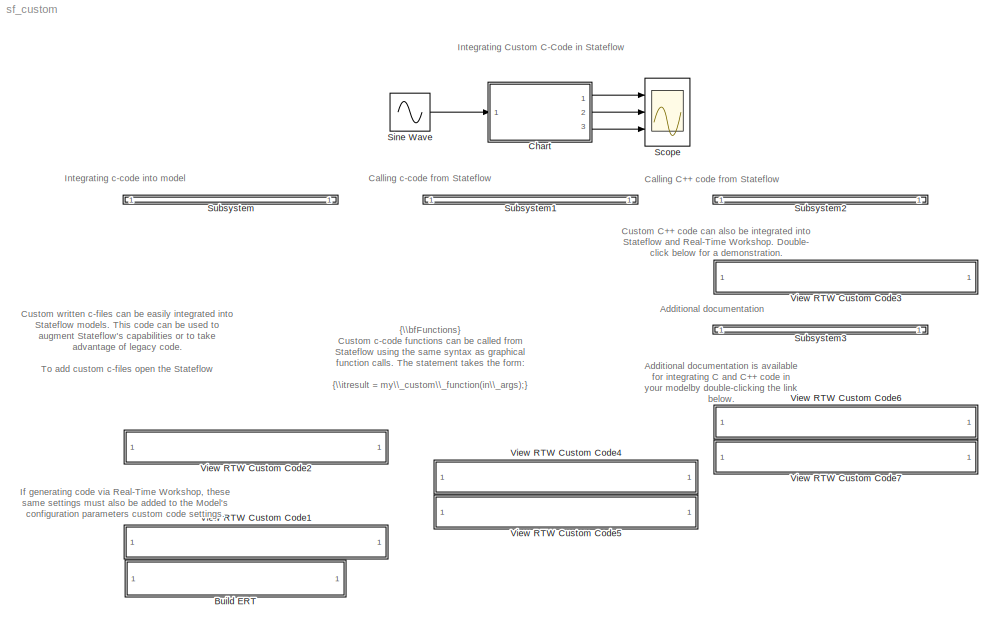
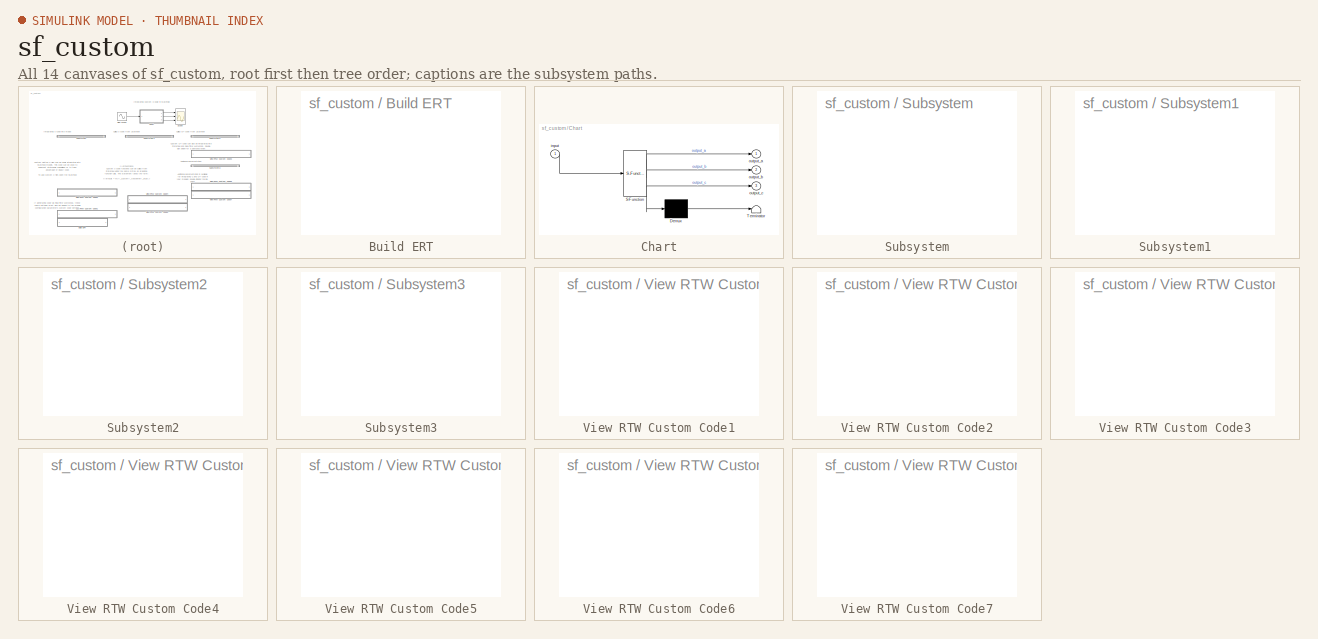
[diagram: thumbnail index - all 14 canvases of the model, root first then tree order]
MODEL sf_custom
KIND model
BLOCK [SubSystem] Build ERT
  MaskDescription = Enter the attributes of the configuration set that you want preserved.  Otherwise, the default configuration script will override your current settings.
  MaskDisplay = patch(arrowXvec, arrowYvec);\ntext(textX, textY, 'Build model using Real-Time\\nWorkshop');
  MaskEnableString = on
  MaskIconFrame = off
  MaskIconOpaque = on
  MaskIconRotate = none
  MaskIconUnits = pixels
  MaskInitialization = pos    = get_param(gcb, 'Position');\nwidth  = pos(3) - pos(1);\nheight = pos(4) - pos(2);\n\n\n% Compute arrow coordinates\narrowW = width  / 20;\narrowH = height / 2.5;\narrowX = width  / 50;\narrowY = height / 3;\narrowXvec = [arrowX, arrowX, arrowX + arrowW];\narrowYvec = [arrowY, arrowY + arrowH, arrowY + arrowH / 2];\n\n% Compute text position\ntextXbuff = width / 30;\ntextX  = arrowX + arro...<+39ch>  <repeated x8 — deduplicated; at blocks: Build ERT, View RTW Custom Code1, View RTW Custom Code2, View RTW Custom Code3, View RTW Custom Code4, View RTW Custom Code5, View RTW Custom Code6, View RTW Custom Code7>
  MaskPromptString = List of attributes to preserve (cell of strings):
  MaskStyleString = edit
  MaskToolTipString = on
  MaskTunableValueString = off
  MaskValueString = {}
  MaskVariables = attrib_overrides=&1;
  MaskVisibilityString = on
  MinAlgLoopOccurrences = off
  OpenFcn = model=bdroot;            \nrtwbuilddemomodel(model);
  Ports = []
  PropExecContextAcrossSSBoundary = on
  RTWSystemCode = Auto
  TreatAsAtomicUnit = off
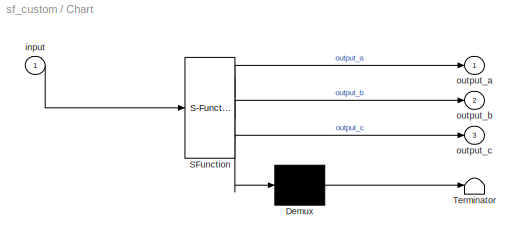
BLOCK [SubSystem] Chart
  MaskDisplay = plot(sf('Private','sfblk','xIcon'),sf('Private','sfblk','yIcon'));text(0.5,0,sf('Private', 'sfblk', 'tIcon'),'HorizontalAl','Center','VerticalAl','Bottom');
  MaskIconFrame = off
  MaskIconOpaque = off
  MaskIconRotate = none
  MaskIconUnits = autoscale
  MaskSelfModifiable = on
  MaskType = Stateflow
  MinAlgLoopOccurrences = off
  Ports = [1, 3]
  PropExecContextAcrossSSBoundary = on
  RTWSystemCode = Auto
  TreatAsAtomicUnit = off
BLOCK [Demux] Chart/ Demux 
  Outputs = 1
  Ports = [1, 1]
BLOCK [S-Function] Chart/ SFunction 
  FunctionName = sf_sfun
  PortCounts = [1 4]
  Ports = [1, 4]
  Tag = Stateflow S-Function sf_custom 2
BLOCK [Terminator] Chart/ Terminator 
BLOCK [Inport] Chart/input
  IconDisplay = Port number
  LatchInput = off
  Port = 1
BLOCK [Outport] Chart/output_a
  BusOutputAsStruct = off
  IconDisplay = Port number
BLOCK [Outport] Chart/output_b
  BusOutputAsStruct = off
  IconDisplay = Port number
  Port = 2
BLOCK [Outport] Chart/output_c
  BusOutputAsStruct = off
  IconDisplay = Port number
  Port = 3
BLOCK [Scope] Scope
  DataFormat = StructureWithTime
  NumInputPorts = 3
  Ports = [3]
  TimeRange = 20
  YMax = 4~2~3.5
  YMin = -4~-2~1
BLOCK [Sin] Sine Wave
  Ports = [0, 1]
  SampleTime = 0
  SineType = Time based
BLOCK [SubSystem] Subsystem
  MinAlgLoopOccurrences = off
  Ports = []
  PropExecContextAcrossSSBoundary = on
  RTWSystemCode = Auto
  TreatAsAtomicUnit = off
BLOCK [SubSystem] Subsystem1
  MinAlgLoopOccurrences = off
  Ports = []
  PropExecContextAcrossSSBoundary = on
  RTWSystemCode = Auto
  TreatAsAtomicUnit = off
BLOCK [SubSystem] Subsystem2
  MinAlgLoopOccurrences = off
  Ports = []
  PropExecContextAcrossSSBoundary = on
  RTWSystemCode = Auto
  TreatAsAtomicUnit = off
BLOCK [SubSystem] Subsystem3
  MinAlgLoopOccurrences = off
  Ports = []
  PropExecContextAcrossSSBoundary = on
  RTWSystemCode = Auto
  TreatAsAtomicUnit = off
BLOCK [SubSystem] View RTW Custom Code1
  MaskDisplay = patch(arrowXvec, arrowYvec);\ntext(textX, textY, 'Open Real-Time Workshop\\ncustom code settings');
  MaskIconFrame = off
  MaskIconOpaque = on
  MaskIconRotate = none
  MaskIconUnits = pixels
  MinAlgLoopOccurrences = off
  OpenFcn = slCfgPrmDlg(bdroot,'Open');                                   \nslCfgPrmDlg(bdroot,'TurnToPage','Real-Time Workshop/Symbols');
  Ports = []
  PropExecContextAcrossSSBoundary = on
  RTWSystemCode = Auto
  TreatAsAtomicUnit = off
BLOCK [SubSystem] View RTW Custom Code2
  MaskDisplay = patch(arrowXvec, arrowYvec);\ntext(textX, textY, 'Open Stateflow simulation\\ncustom code settings');
  MaskIconFrame = off
  MaskIconOpaque = on
  MaskIconRotate = none
  MaskIconUnits = pixels
  MinAlgLoopOccurrences = off
  OpenFcn = rt=sfroot;                                                   \nm=rt.find('-isa','Stateflow.Machine','-and', 'name',bdroot); \ntar=m.find('-isa','Stateflow.Target','-and','name','sfun');  \nsf('Private','targetddg_btn_target_cb',tar,'Target Options');
  Ports = []
  PropExecContextAcrossSSBoundary = on
  RTWSystemCode = Auto
  TreatAsAtomicUnit = off
BLOCK [SubSystem] View RTW Custom Code3
  MaskDisplay = patch(arrowXvec, arrowYvec);\ntext(textX, textY, 'Open sf_cpp');
  MaskIconFrame = off
  MaskIconOpaque = on
  MaskIconRotate = none
  MaskIconUnits = pixels
  MinAlgLoopOccurrences = off
  OpenFcn = sf_cpp
  Ports = []
  PropExecContextAcrossSSBoundary = on
  RTWSystemCode = Auto
  TreatAsAtomicUnit = off
BLOCK [SubSystem] View RTW Custom Code4
  MaskDisplay = patch(arrowXvec, arrowYvec);\ntext(textX, textY, 'Open my_header.h');
  MaskIconFrame = off
  MaskIconOpaque = on
  MaskIconRotate = none
  MaskIconUnits = pixels
  MinAlgLoopOccurrences = off
  OpenFcn = eval('edit my_header.h')
  Ports = []
  PropExecContextAcrossSSBoundary = on
  RTWSystemCode = Auto
  TreatAsAtomicUnit = off
BLOCK [SubSystem] View RTW Custom Code5
  MaskDisplay = patch(arrowXvec, arrowYvec);\ntext(textX, textY, 'Open my_header.c');
  MaskIconFrame = off
  MaskIconOpaque = on
  MaskIconRotate = none
  MaskIconUnits = pixels
  MinAlgLoopOccurrences = off
  OpenFcn = eval('edit my_function.c')
  Ports = []
  PropExecContextAcrossSSBoundary = on
  RTWSystemCode = Auto
  TreatAsAtomicUnit = off
BLOCK [SubSystem] View RTW Custom Code6
  MaskDisplay = patch(arrowXvec, arrowYvec);\ntext(textX, textY, 'C-Code integration');
  MaskIconFrame = off
  MaskIconOpaque = on
  MaskIconRotate = none
  MaskIconUnits = pixels
  MinAlgLoopOccurrences = off
  OpenFcn = helpview([docroot '/mapfiles/stateflow.map'], 'TARGET_OPTIONS_DIALOG')
  Ports = []
  PropExecContextAcrossSSBoundary = on
  RTWSystemCode = Auto
  TreatAsAtomicUnit = off
BLOCK [SubSystem] View RTW Custom Code7
  MaskDisplay = patch(arrowXvec, arrowYvec);\ntext(textX, textY, 'C++-Code integration');
  MaskIconFrame = off
  MaskIconOpaque = on
  MaskIconRotate = none
  MaskIconUnits = pixels
  MinAlgLoopOccurrences = off
  OpenFcn = helpview([docroot '/mapfiles/stateflow.map'], 'including_custom_cpp_code')
  Ports = []
  PropExecContextAcrossSSBoundary = on
  RTWSystemCode = Auto
  TreatAsAtomicUnit = off
ANNOTATION (root): Additional documentation
ANNOTATION (root): Additional documentation is available\nfor integrating C and C++ code in\nyour modelby double-clicking the link\nbelow.
ANNOTATION (root): Calling C++ code from Stateflow
ANNOTATION (root): Calling c-code from Stateflow
ANNOTATION (root): Custom C++ code can also be integrated into\nStateflow and Real-Time Workshop. Double-\nclick below for a demonstration.
ANNOTATION (root): Custom written c-files can be easily integrated into\nStateflow models. This code can be used to\naugment Stateflow's capabilities or to take \nadvantage of legacy code.\n\nTo add custom c-files open the Stateflow\nsimulation target and enter the following:\n\n {\\bfInclude Code} - Header that defines functions,\n structures, and data to be\n accessible by Stateflow.\n {\\bfInclude Path} - Path to...<+112ch>
ANNOTATION (root): If generating code via Real-Time Workshop, these\nsame settings must also be added to the Model's\nconfiguration parameters custom code settings.
ANNOTATION (root): Integrating Custom C-Code in Stateflow
ANNOTATION (root): Integrating c-code into model
ANNOTATION (root): {\\bfFunctions}\nCustom c-code functions can be called from\nStateflow using the same syntax as graphical\nfunction calls. The statement takes the form:\n\n {\\itresult = my\\_custom\\_function(in\\_args);}\n\n{\\bfStructures}\nVariables of structure type can be accessed in\nStateflow via the \"dot\" notation. The expression\ntakes the form:\n\n {\\itresult = my\\_var.my\\_field;}\n\nTo view the c...<+66ch>
LINE Chart/ Demux :1 -> Chart/ Terminator :1
LINE Chart/ SFunction :1 -> Chart/ Demux :1
LINE Chart/ SFunction :2 -> Chart/output_a:1
LINE Chart/ SFunction :3 -> Chart/output_b:1
LINE Chart/ SFunction :4 -> Chart/output_c:1
LINE Chart/input:1 -> Chart/ SFunction :1
LINE Chart:1 -> Scope:1
LINE Chart:2 -> Scope:2
LINE Chart:3 -> Scope:3
LINE Sine Wave:1 -> Chart:1
CHART Chart states=5 transitions=2
  STATE_LABEL 'A\\nduring:\\ngMyStructVar.a = input;\\noutput_a=gMyStructVar.a*3;\\noutput_b = my_function(input);'
  STATE_LABEL 'B\\nduring:\\ngMyStructVar.b[1]=input+3;\\ngMyStructPointerVar = &gMyStructVar;\\noutput_c=gMyStructPointerVar->b[1];'
  STATE_LABEL 'One'
  STATE_LABEL 'Two'
  STATE_LABEL 'In this demo, a C-code function defined in my_function.c and a structure that is defined\\nin my_header.h are included in the chart. MY_FUNCTION simply multiplies its input by\\n2. The structure in my_header.h is defined as follows:\\ntypedef struct {\\n                real_T a;\\n                int8_T b[10];\\n}MyStruct;\\nIn the model, we access the structure member using the dot notation:  MyStruct.a...<+283ch>'
